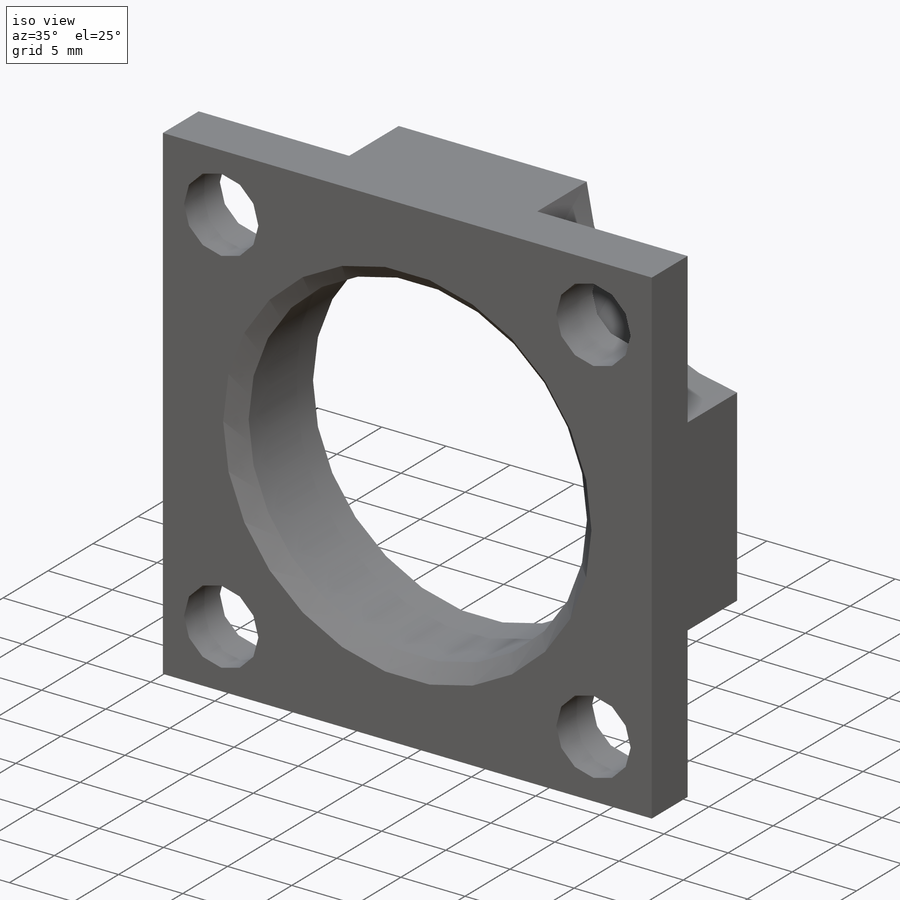
[diagram: iso view]
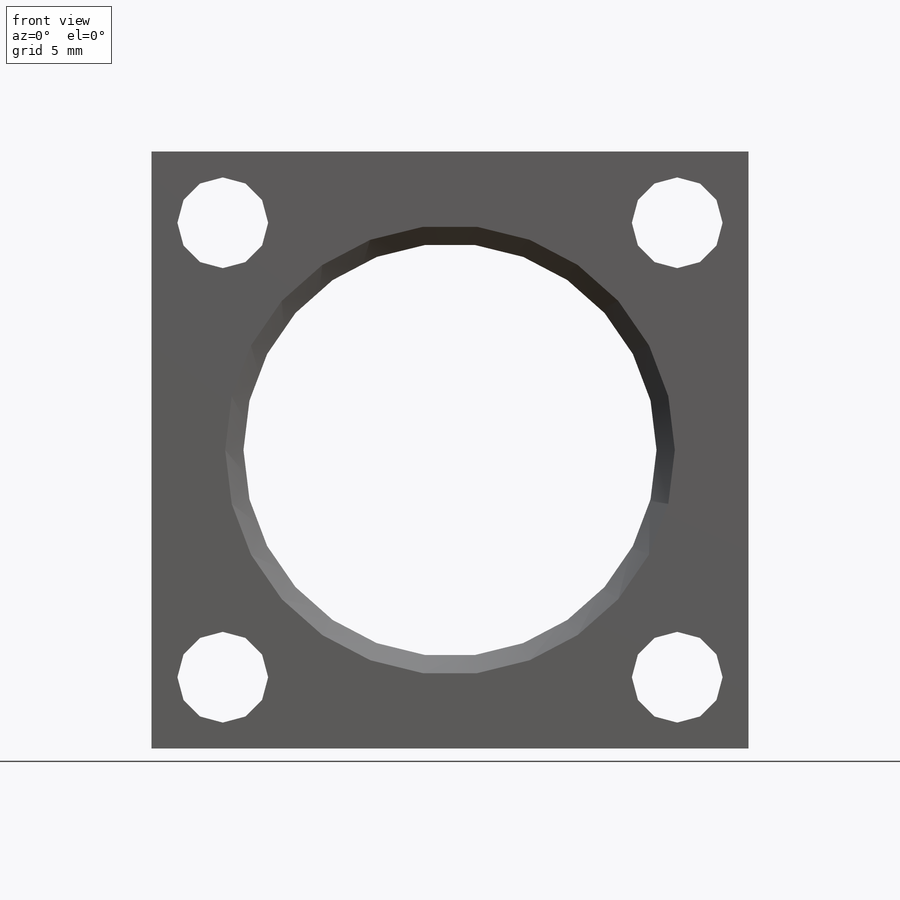
[diagram: front view]
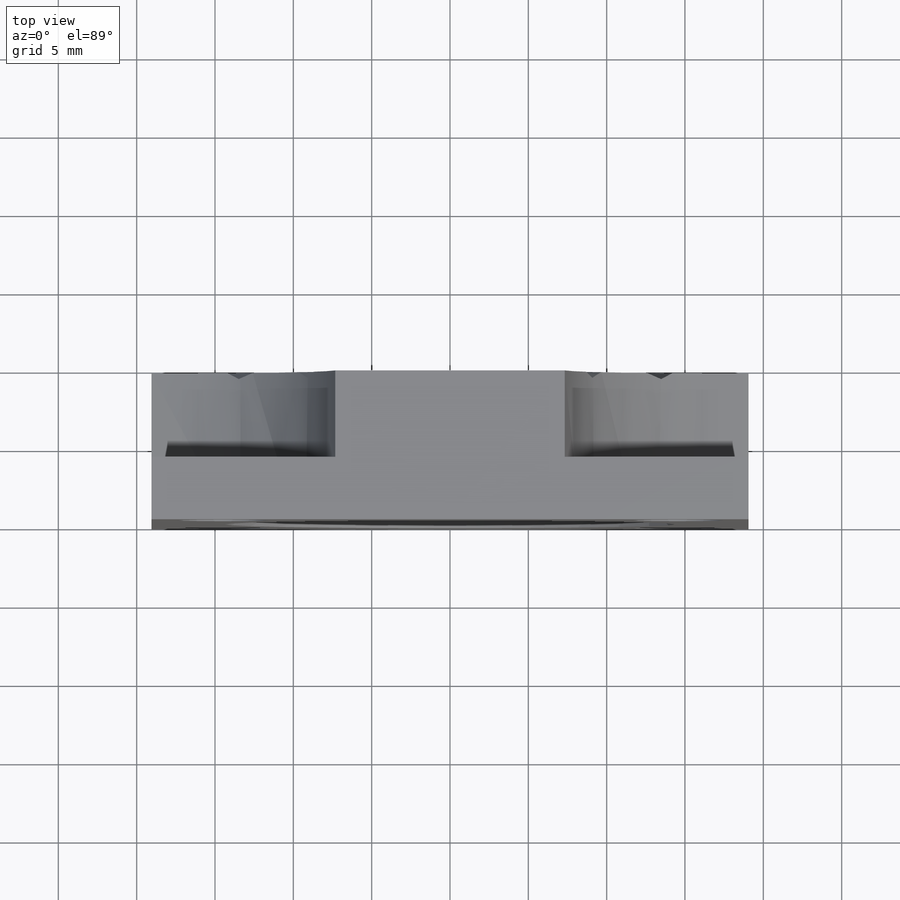
[diagram: top view]
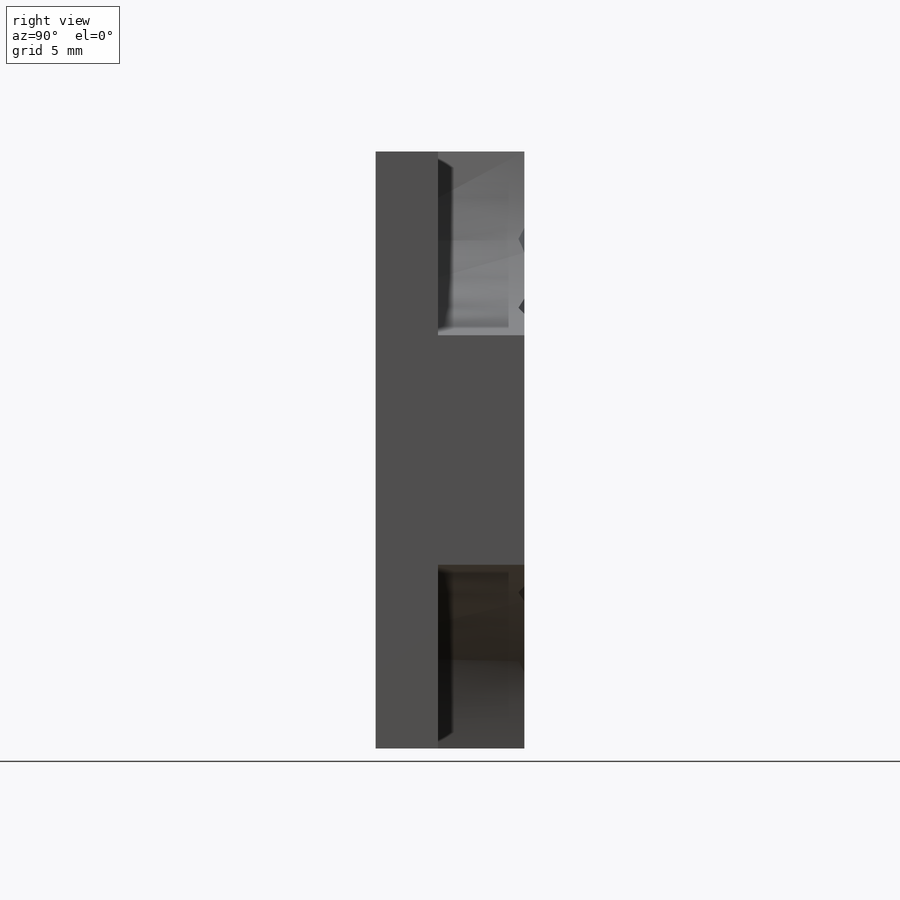
[diagram: right view]
SOLIDWORKS PART (.sldprt)
format: sldprt  version: not decoded by parser v0  size: 258,048 bytes
history: native  units: mm
features: sketch x6, cut_revolve x2, material x1, extrude x1, cut_extrude x1, hole x1 (+13 scaffold rows collapsed)
feature tree (25):
  scaffold x13  (default folders/planes/origin — collapsed)
  material  "Alloy Steel"
  sketch  "Sketch1"  dims[D3=26.366mm D1=38.1mm D2=38.1mm]
  extrude  "Extrude1"  Depth=9.4996mm
  sketch  "Sketch2"  dims[D1=12.7mm D2=19.9898mm D3=19.9898mm]
  cut_extrude  "Cut-Extrude1"  Depth=5.5118mm
  hole  "Hole1"  Diameter=5.7912mm Depth=3.9878mm
  sketch  "Sketch4"  dims[c1.D1=14.2875mm c1.D2=14.2875mm c2.D1=14.5034mm c2.D2=14.5034mm c2.D3=29.0068mm c2.D4=29.0068mm]
  sketch  "Sketch3"  dims[Diameter=5.7912mm Depth=3.9878mm]
  sketch  "Sketch5"  dims[c1.D1=~2.360965mm c2.D1=45.0deg c2.D2=27.686mm c3.D1=28.702mm c3.D2=~2.793963mm c4.D2=45.0deg]
  cut_revolve  "Cut-Revolve1"  Angle=360deg
  sketch  "Sketch6"  dims[c1.D1=~0.661701mm c2.D1=90.0deg c2.D2=~1.128259mm c3.D2=45.0deg c3.D3=32.512mm c3.D4=0.762mm]
  cut_revolve  "Cut-Revolve2"  Angle=360deg
decode coverage: 11 of 11 modeling features carry decoded parameters
note: ~ marks probable driven/reference dimensions
note: suppression state not decoded; provenance and decode notes live in map.json
